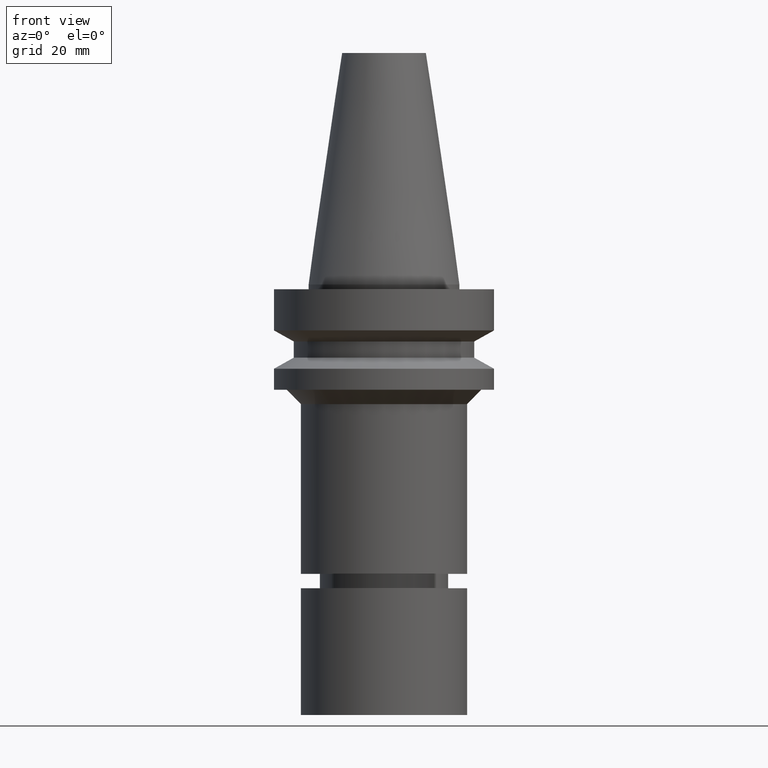
[diagram: clean part render]
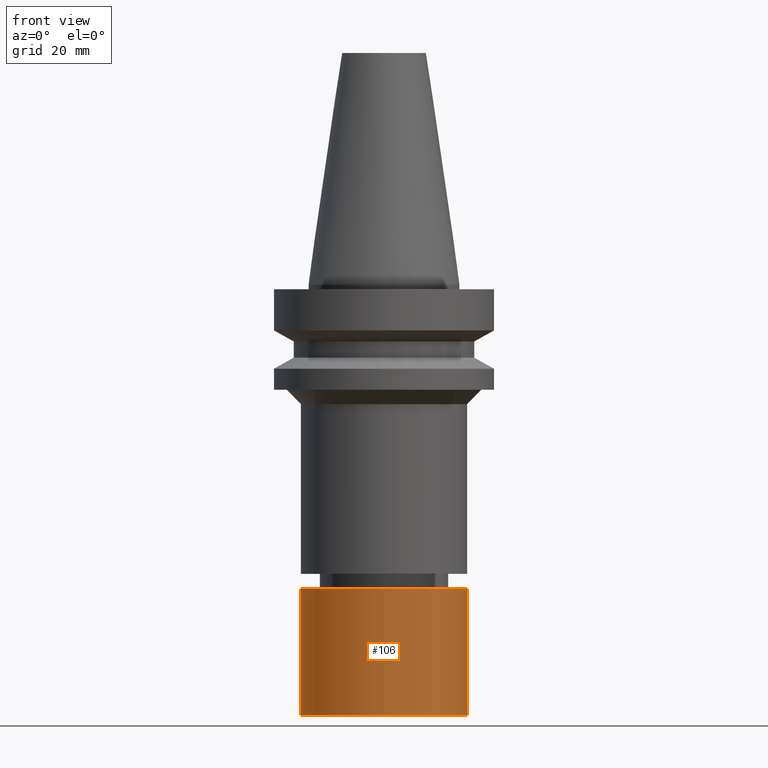
[diagram: same view with one face highlighted and labeled with its STEP entity id]
A machine part, front view. The second image highlights one B-rep face of the part: STEP entity #106.
In plain terms, the highlighted cylindrical surface (bore or boss wall) has radius 17.5 mm, axis along (0, 0, -1).
Its self-contained STEP definition (entity closure, byte-faithful):
#94=EDGE_CURVE('Unnamed[1]',#229,#229,#230,.T.);
#106=ADVANCED_FACE('Unnamed[1]',(#247,#248),#249,.T.);
#146=EDGE_CURVE('Unnamed[1]',#311,#311,#312,.T.);
#229=VERTEX_POINT('',#412);
#230=CIRCLE('',#413,17.5);
#247=FACE_BOUND('',#434,.T.);
#248=FACE_BOUND('',#435,.T.);
#249=CYLINDRICAL_SURFACE('',#436,17.5);
#311=VERTEX_POINT('',#514);
#312=CIRCLE('',#515,17.5);
#412=CARTESIAN_POINT('',(3.88825452162421E-015,17.5,-63.5000152587891));
#413=AXIS2_PLACEMENT_3D('',#608,#609,#610);
#434=EDGE_LOOP('',(#629));
#435=EDGE_LOOP('',(#630));
#436=AXIS2_PLACEMENT_3D('',#631,#632,#633);
#514=CARTESIAN_POINT('',(5.51091059616309E-015,17.5,-90.0));
#515=AXIS2_PLACEMENT_3D('',#702,#703,#704);
#608=CARTESIAN_POINT('',(3.88825452162421E-015,7.77650904324841E-015,-63.5000152587891));
#609=DIRECTION('',(6.12323399573677E-017,1.22464679914735E-016,-1.0));
#610=DIRECTION('',(-1.23259516440783E-032,1.0,1.22464679914735E-016));
#629=ORIENTED_EDGE('',*,*,#146,.F.);
#630=ORIENTED_EDGE('',*,*,#94,.T.);
#631=CARTESIAN_POINT('',(4.69958255889365E-015,9.39916511778729E-015,-76.7500076293945));
#632=DIRECTION('',(6.12323399573677E-017,1.22464679914735E-016,-1.0));
#633=DIRECTION('',(-1.23259516440783E-032,1.0,1.22464679914735E-016));
#702=CARTESIAN_POINT('',(5.51091059616309E-015,1.10218211923262E-014,-90.0));
#703=DIRECTION('',(6.12323399573677E-017,1.22464679914735E-016,-1.0));
#704=DIRECTION('',(-1.23259516440783E-032,1.0,1.22464679914735E-016));